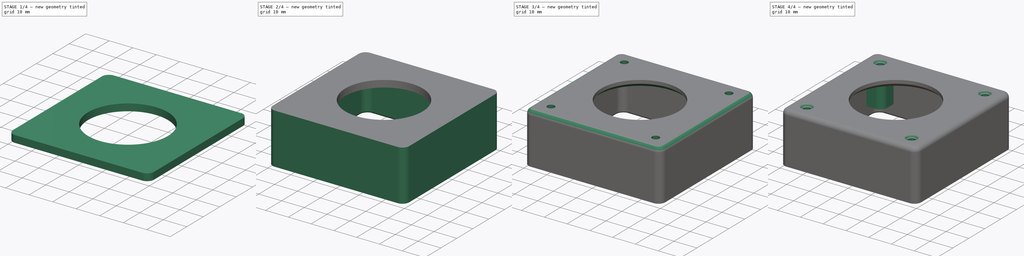
[diagram: build sequence overview — one tinted view per stage of 4, left to right]
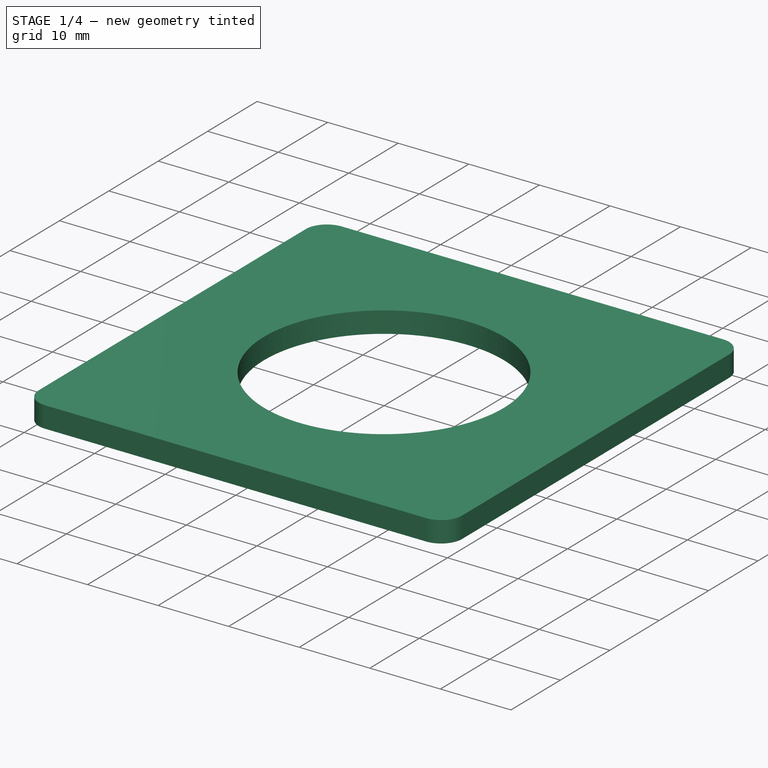
[diagram: stage 1 of 4 — iso view after this stage's code; geometry added in this stage tinted green]
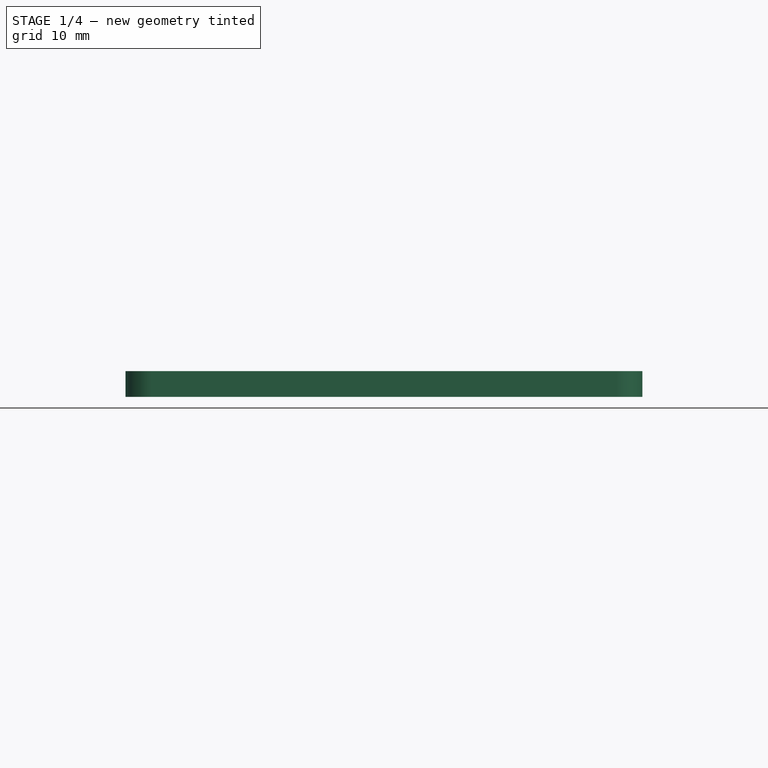
[diagram: stage 1 of 4 — front view after this stage's code; geometry added in this stage tinted green]
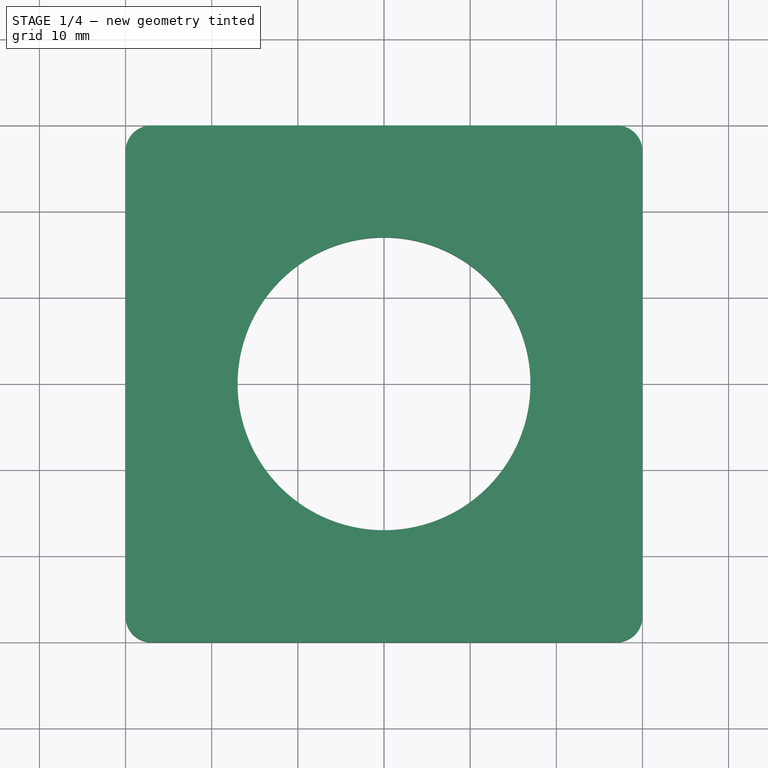
[diagram: stage 1 of 4 — top view after this stage's code; geometry added in this stage tinted green]
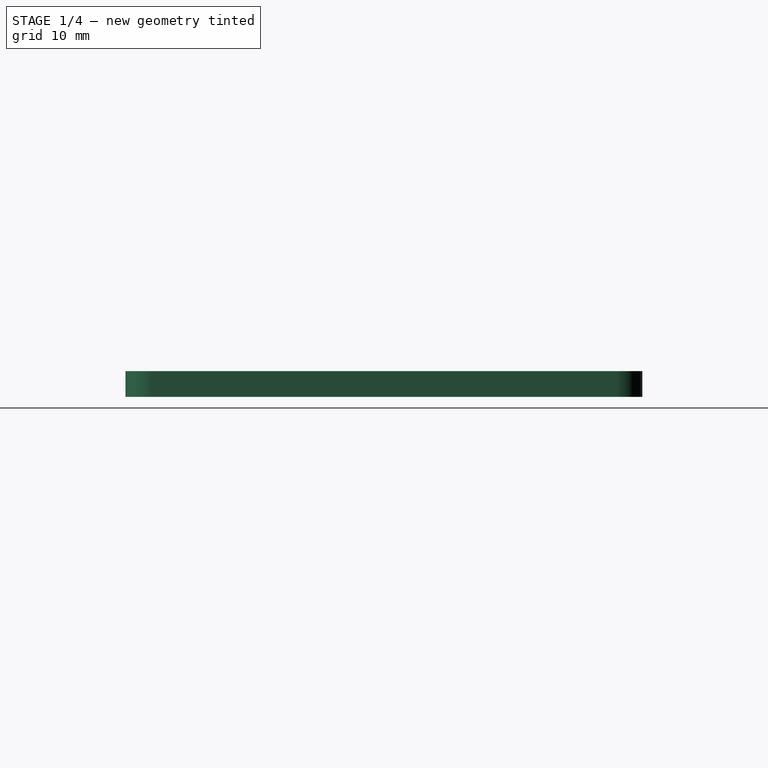
[diagram: stage 1 of 4 — right view after this stage's code; geometry added in this stage tinted green]
FCSTD DOCUMENT  (FreeCAD 1.0R39109 (Git))
Label: base lid
License: All rights reserved
objects: Sketcher::SketchObject×5, PartDesign::Pad×3, PartDesign::Pocket×2, PartDesign::Fillet×2, PartDesign::Chamfer×2, PartDesign::Body×1
note: 38 computed .brp shape members not serialized (recipe doc carries the construction recipe); baked Part::Feature solids carry a one-line shape summary decoded from their .brp

FEATURE [Sketcher::SketchObject] Sketch
  ArcFitTolerance = 1e-06
  AttachmentSupport = -> [XY_Plane]
  FullyConstrained = true
  MakeInternals = false
  MapMode = 5
  sketch-geometry (10):
    g0: LineSegment StartX=-30 StartY=27 StartZ=0 EndX=-30 EndY=-27 EndZ=0
    g1: LineSegment StartX=-27 StartY=-30 StartZ=0 EndX=27 EndY=-30 EndZ=0
    g2: LineSegment StartX=30 StartY=-27 StartZ=0 EndX=30 EndY=27 EndZ=0
    g3: LineSegment StartX=27 StartY=30 StartZ=0 EndX=-27 EndY=30 EndZ=0
    g4: ArcOfCircle CenterX=-27 CenterY=27 CenterZ=0 NormalX=0 NormalY=0 NormalZ=1 AngleXU=0 Radius=3 StartAngle=1.5708 EndAngle=3.14159
    g5: ArcOfCircle CenterX=-27 CenterY=-27 CenterZ=0 NormalX=0 NormalY=0 NormalZ=1 AngleXU=0 Radius=3 StartAngle=3.14159 EndAngle=4.71239
    g6: ArcOfCircle CenterX=27 CenterY=-27 CenterZ=0 NormalX=0 NormalY=0 NormalZ=1 AngleXU=0 Radius=3 StartAngle=4.71239 EndAngle=6.28319
    g7: ArcOfCircle CenterX=27 CenterY=27 CenterZ=0 NormalX=0 NormalY=0 NormalZ=1 AngleXU=0 Radius=3 StartAngle=3e-16 EndAngle=1.5708
    g8: GeomPoint [constr] X=-30 Y=30 Z=0
    g9: GeomPoint [constr] X=30 Y=-30 Z=0
  constraints (22):
    c: Tangent(g0,g4) = -1.5708
    c: Tangent(g0,g5) = -1.5708
    c: Tangent(g1,g5) = -1.5708
    c: Tangent(g1,g6) = -1.5708
    c: Tangent(g2,g6) = -1.5708
    c: Tangent(g2,g7) = -1.5708
    c: Tangent(g3,g7) = -1.5708
    c: Tangent(g3,g4) = -1.5708
    c: Vertical(g0)
    c: Vertical(g2)
    c: Horizontal(g1)
    c: Horizontal(g3)
    c: Equal(g5,g6)
    c: PointOnObject(g8,g0)
    c: PointOnObject(g8,g3)
    c: PointOnObject(g9,g1)
    c: PointOnObject(g9,g2)
    c: Distance(g0,g2) = 60
    c: Distance(g1,g3) = 60
    c: Radius(g5) = 3
    c: Symmetric(g4,g7,g-2)
    c: Symmetric(g5,g4,g-1)
FEATURE [PartDesign::Pad] Pad
  Direction = (0,0,1)
  Length = 3
  Length2 = 10
  Profile = -> Sketch
  ReferenceAxis = -> Sketch [N_Axis]
  Refine = true
  Suppressed = false
  Type = 0
FEATURE [Sketcher::SketchObject] Sketch001
  ArcFitTolerance = 1e-06
  AttachmentSupport = -> [Pad]
  FullyConstrained = true
  MakeInternals = false
  MapMode = 5
  Placement = pos=(0,0,0) rot=(1,0,0;3.14159rad)
  sketch-geometry (1):
    g0: Circle CenterX=0 CenterY=0 CenterZ=0 NormalX=0 NormalY=0 NormalZ=1 AngleXU=0 Radius=17
  constraints (2):
    c: Coincident(g0,g-1)
    c: Radius(g0) = 17
FEATURE [PartDesign::Pocket] Pocket
  BaseFeature = -> Pad
  Direction = (0,0,1)
  Length = 5
  Length2 = 5
  Profile = -> Sketch001
  ReferenceAxis = -> Sketch001 [N_Axis]
  Refine = true
  Suppressed = false
  Type = 1
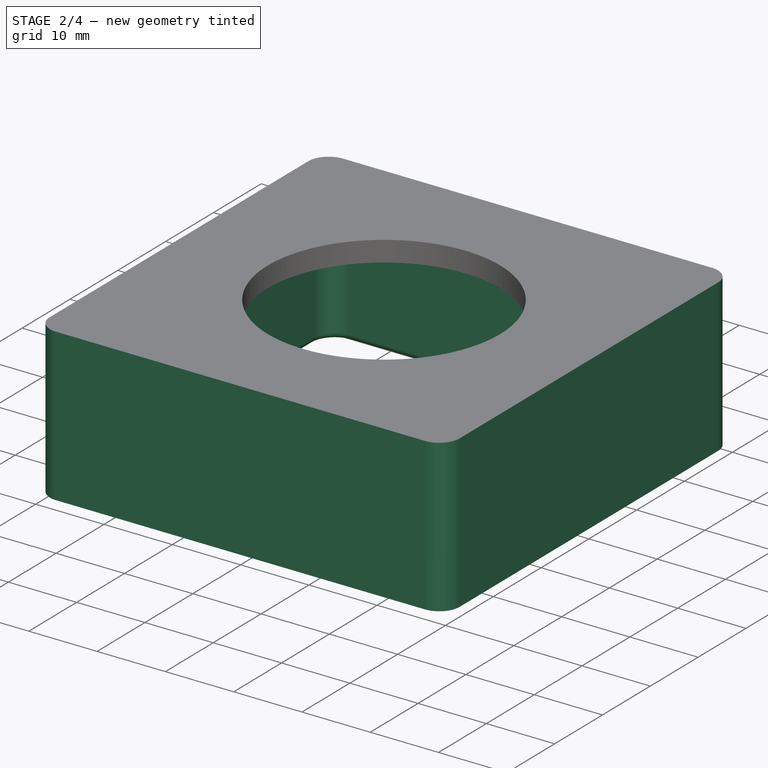
[diagram: stage 2 of 4 — iso view after this stage's code; geometry added in this stage tinted green]
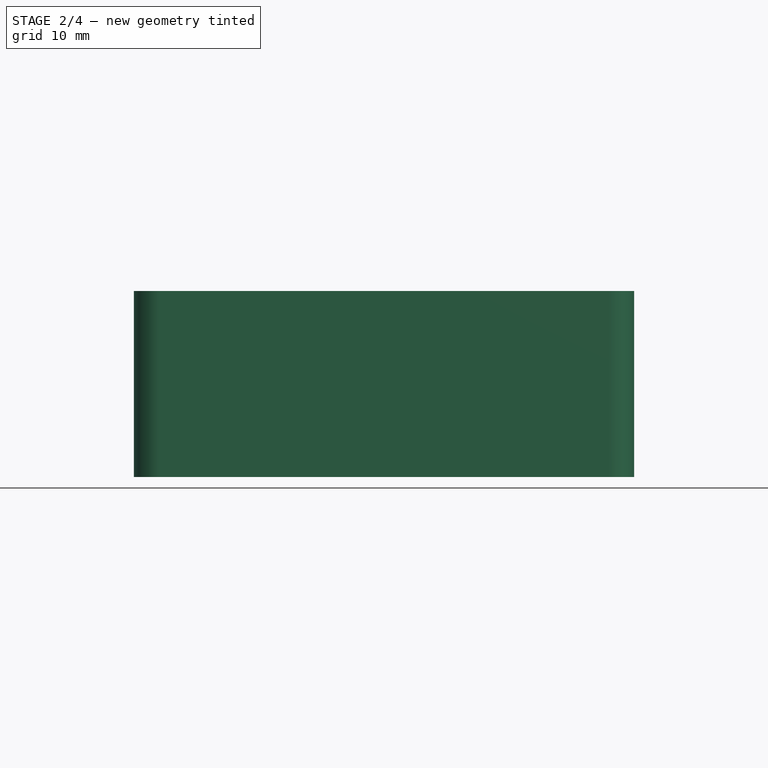
[diagram: stage 2 of 4 — front view after this stage's code; geometry added in this stage tinted green]
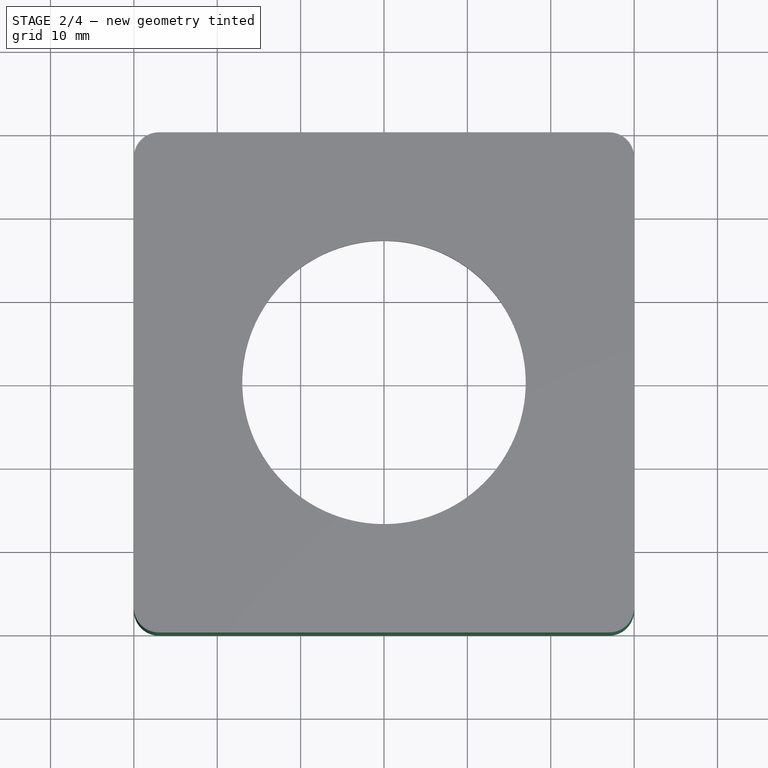
[diagram: stage 2 of 4 — top view after this stage's code; geometry added in this stage tinted green]
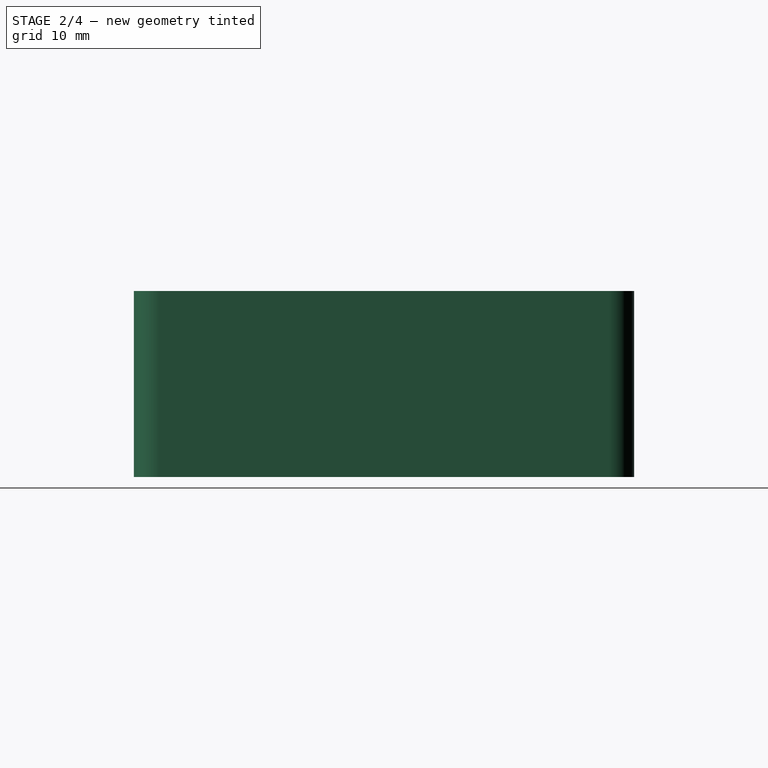
[diagram: stage 2 of 4 — right view after this stage's code; geometry added in this stage tinted green]
FEATURE [Sketcher::SketchObject] Sketch002
  ArcFitTolerance = 1e-06
  AttachmentSupport = -> [Pocket]
  ExternalGeometry = -> [Pocket]
  FullyConstrained = true
  MakeInternals = false
  MapMode = 5
  Placement = pos=(0,0,0) rot=(1,0,0;3.14159rad)
  sketch-geometry (20):
    g0: LineSegment StartX=-30 StartY=27 StartZ=0 EndX=-30 EndY=-27 EndZ=0
    g1: LineSegment StartX=-27 StartY=-30 StartZ=0 EndX=27 EndY=-30 EndZ=0
    g2: LineSegment StartX=30 StartY=-27 StartZ=0 EndX=30 EndY=27 EndZ=0
    g3: LineSegment StartX=27 StartY=30 StartZ=0 EndX=-27 EndY=30 EndZ=0
    g4: ArcOfCircle CenterX=-27 CenterY=27 CenterZ=0 NormalX=0 NormalY=0 NormalZ=1 AngleXU=0 Radius=3 StartAngle=1.5708 EndAngle=3.14159
    g5: ArcOfCircle CenterX=-27 CenterY=-27 CenterZ=0 NormalX=0 NormalY=0 NormalZ=1 AngleXU=0 Radius=3 StartAngle=3.14159 EndAngle=4.71239
    g6: ArcOfCircle CenterX=27 CenterY=-27 CenterZ=0 NormalX=0 NormalY=0 NormalZ=1 AngleXU=0 Radius=3 StartAngle=4.71239 EndAngle=6.28319
    g7: ArcOfCircle CenterX=27 CenterY=27 CenterZ=0 NormalX=0 NormalY=0 NormalZ=1 AngleXU=0 Radius=3 StartAngle=1e-16 EndAngle=1.5708
    g8: GeomPoint [constr] X=-30 Y=30 Z=0
    g9: GeomPoint [constr] X=30 Y=-30 Z=0
    g10: LineSegment StartX=-27 StartY=24 StartZ=0 EndX=-27 EndY=-24 EndZ=0
    g11: LineSegment StartX=-24 StartY=-27 StartZ=0 EndX=24 EndY=-27 EndZ=0
    g12: LineSegment StartX=27 StartY=-24 StartZ=0 EndX=27 EndY=24 EndZ=0
    g13: LineSegment StartX=24 StartY=27 StartZ=0 EndX=-24 EndY=27 EndZ=0
    g14: ArcOfCircle CenterX=-24 CenterY=24 CenterZ=0 NormalX=0 NormalY=0 NormalZ=1 AngleXU=0 Radius=3 StartAngle=1.5708 EndAngle=3.14159
    g15: ArcOfCircle CenterX=-24 CenterY=-24 CenterZ=0 NormalX=0 NormalY=0 NormalZ=1 AngleXU=0 Radius=3 StartAngle=3.14159 EndAngle=4.71239
    g16: ArcOfCircle CenterX=24 CenterY=-24 CenterZ=0 NormalX=0 NormalY=0 NormalZ=1 AngleXU=0 Radius=3 StartAngle=4.71239 EndAngle=6.28319
    g17: ArcOfCircle CenterX=24 CenterY=24 CenterZ=0 NormalX=0 NormalY=0 NormalZ=1 AngleXU=0 Radius=3 StartAngle=4e-16 EndAngle=1.5708
    g18: GeomPoint [constr] X=-27 Y=27 Z=0
    g19: GeomPoint [constr] X=27 Y=-27 Z=0
  constraints (45):
    c: Tangent(g0,g4) = -1.5708
    c: Tangent(g0,g5) = -1.5708
    c: Tangent(g1,g5) = -1.5708
    c: Tangent(g1,g6) = -1.5708
    c: Tangent(g2,g6) = -1.5708
    c: Tangent(g2,g7) = -1.5708
    c: Tangent(g3,g7) = -1.5708
    c: Tangent(g3,g4) = -1.5708
    c: Vertical(g0)
    c: Vertical(g2)
    c: Horizontal(g1)
    c: Horizontal(g3)
    c: Equal(g4,g5)
    c: Equal(g5,g6)
    c: Equal(g6,g7)
    c: PointOnObject(g8,g0)
    c: PointOnObject(g8,g3)
    c: PointOnObject(g9,g1)
    c: PointOnObject(g9,g2)
    c: Radius(g5) = 3
    c: Tangent(g10,g14) = -1.5708
    c: Tangent(g10,g15) = -1.5708
    c: Tangent(g11,g15) = -1.5708
    c: Tangent(g11,g16) = -1.5708
    c: Tangent(g12,g16) = -1.5708
    c: Tangent(g12,g17) = -1.5708
    c: Tangent(g13,g17) = -1.5708
    c: Tangent(g13,g14) = -1.5708
    c: Vertical(g10)
    c: Vertical(g12)
    c: Horizontal(g11)
    c: Horizontal(g13)
    c: Equal(g15,g16)
    c: PointOnObject(g18,g10)
    c: PointOnObject(g18,g13)
    c: PointOnObject(g19,g11)
    c: PointOnObject(g19,g12)
    c: Radius(g15) = 3
    c: Coincident(g-3,g4)
    c: Coincident(g-4,g6)
    c: Symmetric(g10,g12,g-2)
    c: Symmetric(g13,g11,g-1)
    c: DistanceX(g0,g10) = 3
    c: Equal(g10,g13)
    c: DistanceX(g10,g12) = 54
FEATURE [PartDesign::Pad] Pad001
  BaseFeature = -> Pocket
  Direction = (0,0,-1)
  Length = 19.3
  Length2 = 10
  Profile = -> Sketch002
  ReferenceAxis = -> Sketch002 [N_Axis]
  Refine = true
  Suppressed = false
  Type = 0
FEATURE [PartDesign::Fillet] Fillet
  Base = -> Pad001 [Edge9,Edge13,Edge15,Edge11]
  BaseFeature = -> Pad001
  Radius = 1
  Refine = true
  SupportTransform = false
  Suppressed = false
  UseAllEdges = false
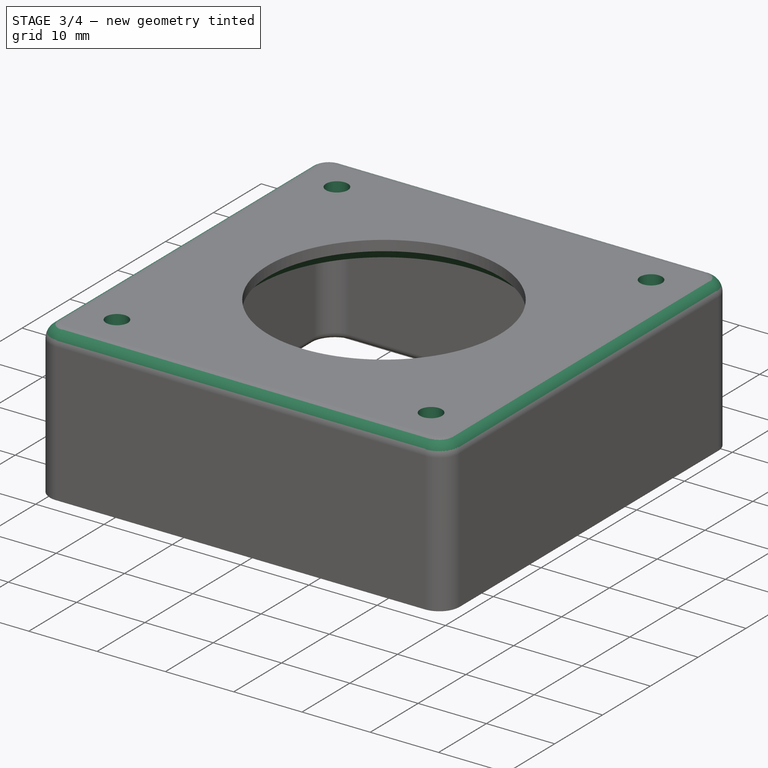
[diagram: stage 3 of 4 — iso view after this stage's code; geometry added in this stage tinted green]
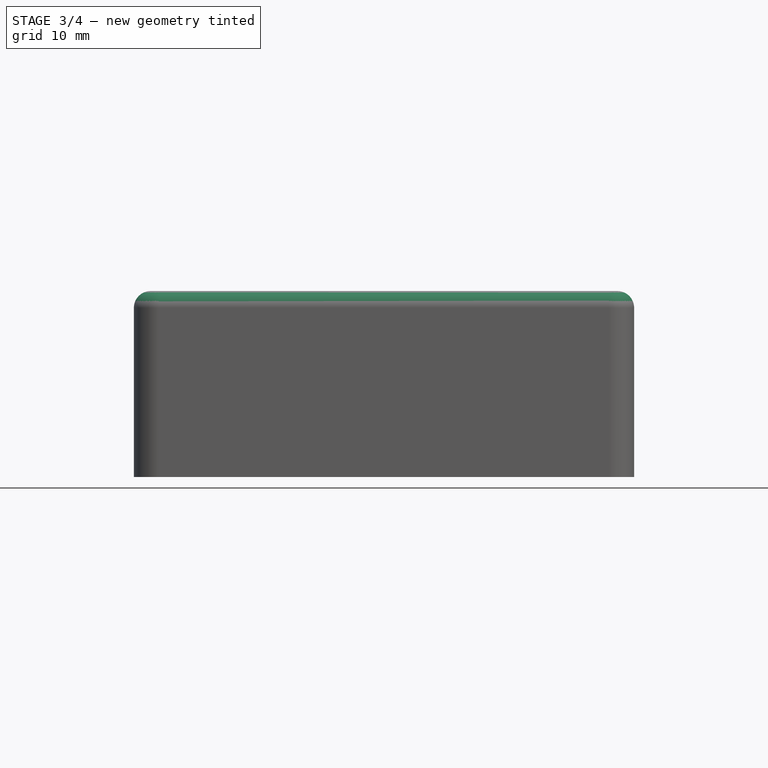
[diagram: stage 3 of 4 — front view after this stage's code; geometry added in this stage tinted green]
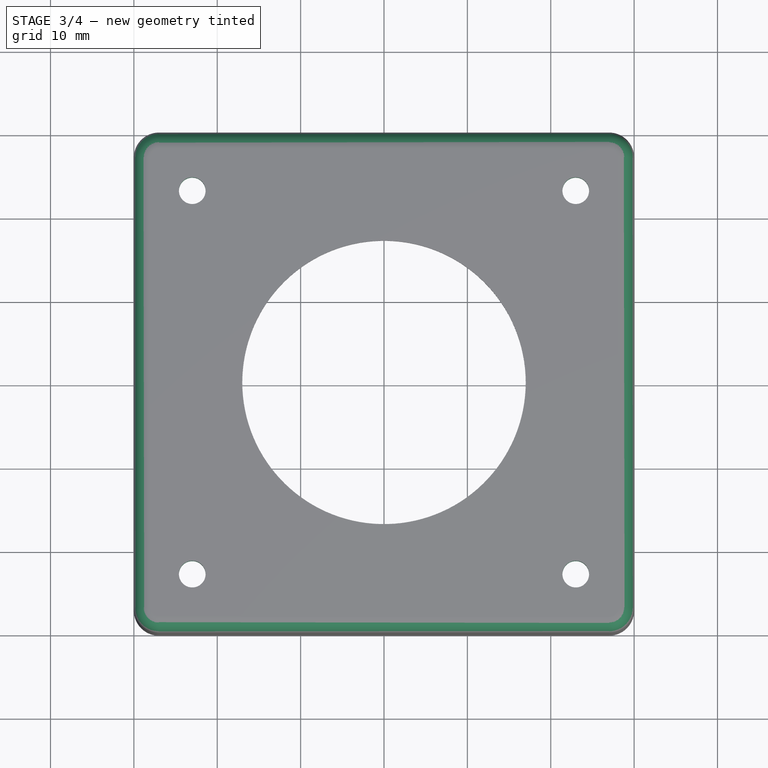
[diagram: stage 3 of 4 — top view after this stage's code; geometry added in this stage tinted green]
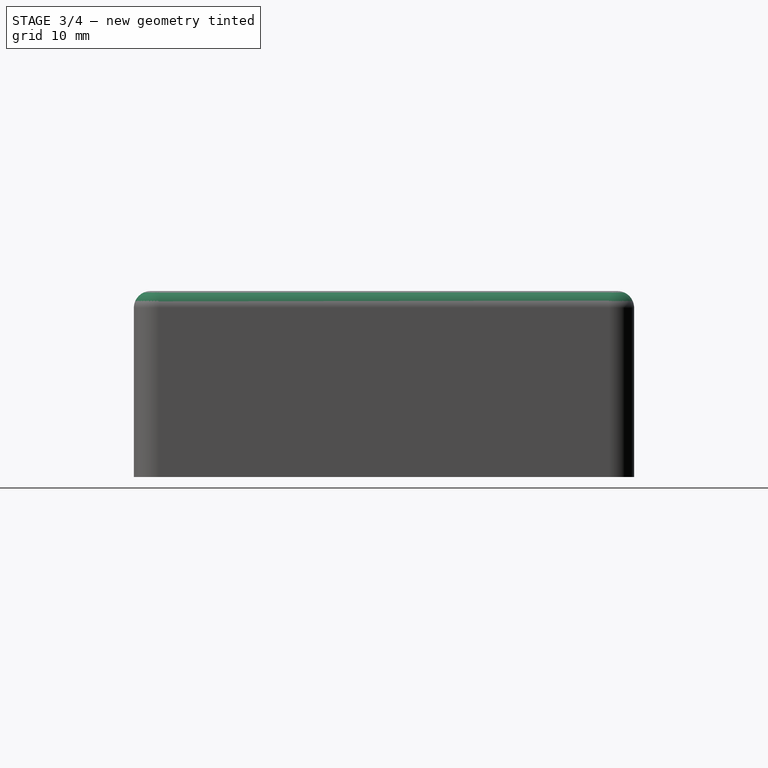
[diagram: stage 3 of 4 — right view after this stage's code; geometry added in this stage tinted green]
FEATURE [PartDesign::Fillet] Fillet001
  Base = -> Fillet [Edge39,Edge35,Edge47,Edge43]
  BaseFeature = -> Fillet
  Radius = 2
  Refine = true
  SupportTransform = false
  Suppressed = false
  UseAllEdges = false
FEATURE [PartDesign::Chamfer] Chamfer
  Angle = 45
  Base = -> Fillet001 [Edge66]
  BaseFeature = -> Fillet001
  ChamferType = 0
  FlipDirection = false
  Refine = true
  Size = 1.5
  Size2 = 1
  SupportTransform = false
  Suppressed = false
  UseAllEdges = false
FEATURE [Sketcher::SketchObject] Sketch003
  ArcFitTolerance = 1e-06
  AttachmentSupport = -> [Chamfer]
  FullyConstrained = true
  MakeInternals = false
  MapMode = 5
  Placement = pos=(0,0,0) rot=(1,0,0;3.14159rad)
  sketch-geometry (8):
    g0: LineSegment [constr] StartX=-23 StartY=23 StartZ=0 EndX=-23 EndY=-23 EndZ=0
    g1: LineSegment [constr] StartX=-23 StartY=-23 StartZ=0 EndX=23 EndY=-23 EndZ=0
    g2: LineSegment [constr] StartX=23 StartY=-23 StartZ=0 EndX=23 EndY=23 EndZ=0
    g3: LineSegment [constr] StartX=23 StartY=23 StartZ=0 EndX=-23 EndY=23 EndZ=0
    g4: Circle CenterX=-23 CenterY=23 CenterZ=0 NormalX=0 NormalY=0 NormalZ=1 AngleXU=0 Radius=1.6
    g5: Circle CenterX=-23 CenterY=-23 CenterZ=0 NormalX=0 NormalY=0 NormalZ=1 AngleXU=0 Radius=1.6
    g6: Circle CenterX=23 CenterY=-23 CenterZ=0 NormalX=0 NormalY=0 NormalZ=1 AngleXU=0 Radius=1.6
    g7: Circle CenterX=23 CenterY=23 CenterZ=0 NormalX=0 NormalY=0 NormalZ=1 AngleXU=0 Radius=1.6
  constraints (18):
    c: Coincident(g0,g1)
    c: Coincident(g1,g2)
    c: Coincident(g2,g3)
    c: Coincident(g3,g0)
    c: Vertical(g2)
    c: Horizontal(g3)
    c: Symmetric(g0,g1,g-2)
    c: Symmetric(g0,g0,g-1)
    c: Equal(g0,g1)
    c: DistanceX(g3,g3) = 46
    c: Coincident(g4,g0)
    c: Coincident(g5,g0)
    c: Coincident(g6,g1)
    c: Coincident(g7,g2)
    c: Equal(g7,g4)
    c: Equal(g4,g5)
    c: Equal(g5,g6)
    c: Radius(g5) = 1.6
FEATURE [PartDesign::Pocket] Pocket001
  BaseFeature = -> Chamfer
  Direction = (0,0,1)
  Length = 5
  Length2 = 5
  Profile = -> Sketch003
  ReferenceAxis = -> Sketch003 [N_Axis]
  Refine = true
  Suppressed = false
  Type = 0
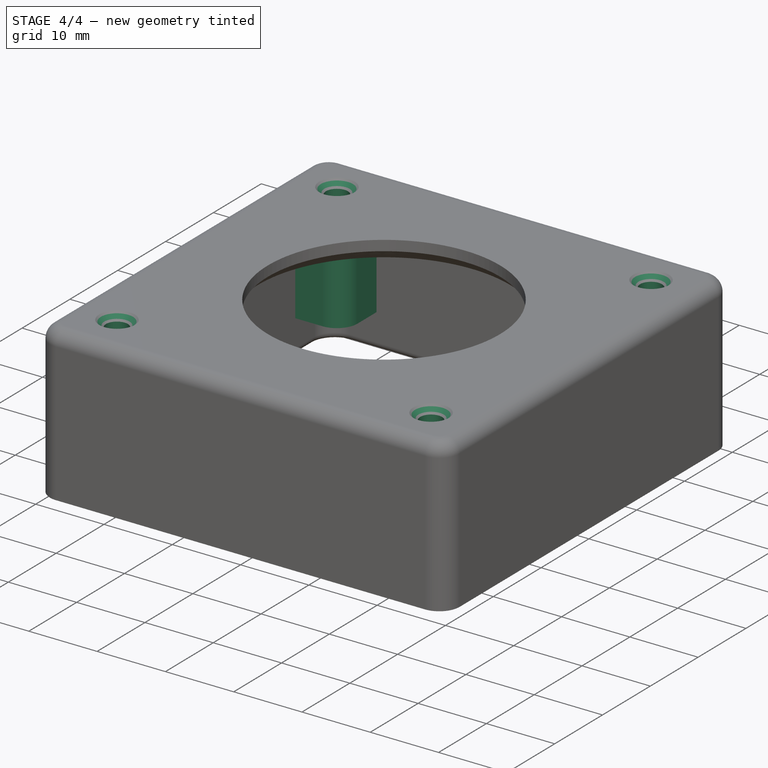
[diagram: stage 4 of 4 — iso view after this stage's code; geometry added in this stage tinted green]
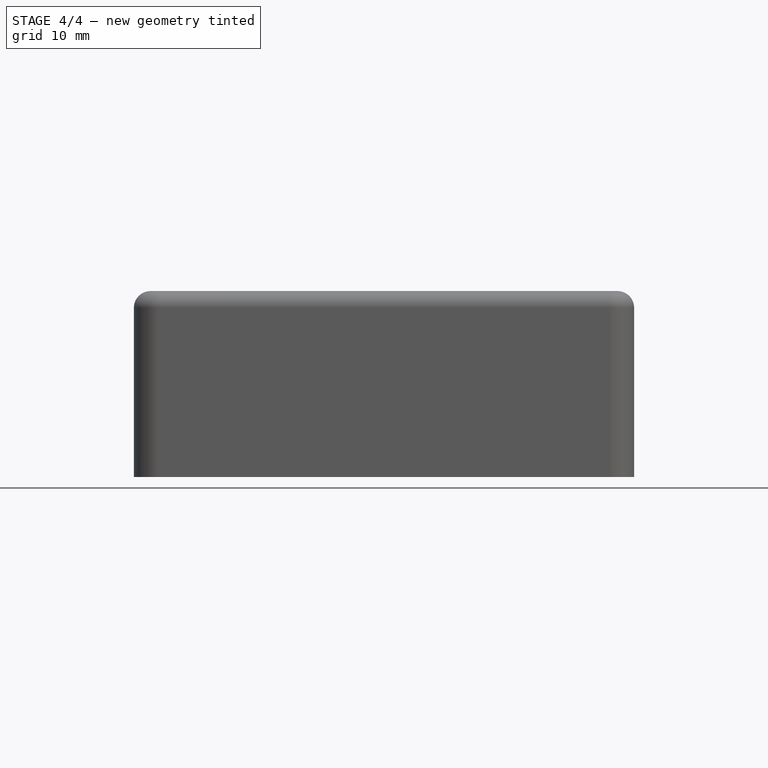
[diagram: stage 4 of 4 — front view after this stage's code; geometry added in this stage tinted green]
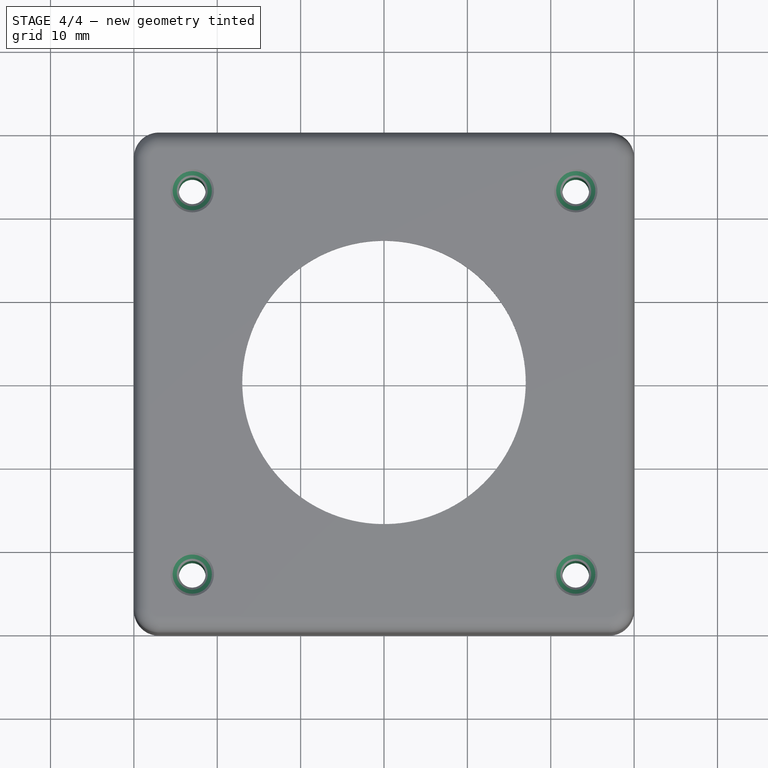
[diagram: stage 4 of 4 — top view after this stage's code; geometry added in this stage tinted green]
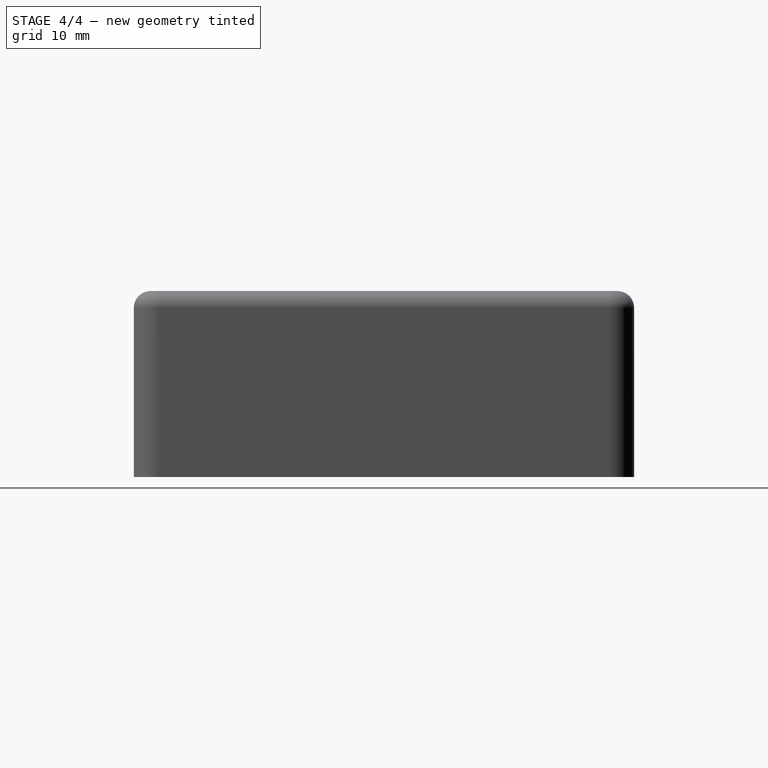
[diagram: stage 4 of 4 — right view after this stage's code; geometry added in this stage tinted green]
FEATURE [Sketcher::SketchObject] Sketch004
  ArcFitTolerance = 1e-06
  AttachmentSupport = -> [Pocket001]
  ExternalGeometry = -> [Pocket001]
  FullyConstrained = true
  MakeInternals = false
  MapMode = 5
  Placement = pos=(0,0,0) rot=(1,0,0;3.14159rad)
  sketch-geometry (31):
    g0: LineSegment StartX=-27 StartY=24 StartZ=0 EndX=-27 EndY=20 EndZ=0
    g1: LineSegment StartX=-27 StartY=20 StartZ=0 EndX=-23 EndY=20 EndZ=0
    g2: LineSegment StartX=-20 StartY=23 StartZ=0 EndX=-20 EndY=27 EndZ=0
    g3: LineSegment StartX=-20 StartY=27 StartZ=0 EndX=-24 EndY=27 EndZ=0
    g4: ArcOfCircle CenterX=-24 CenterY=24 CenterZ=0 NormalX=0 NormalY=0 NormalZ=1 AngleXU=0 Radius=3 StartAngle=1.5708 EndAngle=3.14159
    g5: ArcOfCircle CenterX=-23 CenterY=23 CenterZ=0 NormalX=0 NormalY=0 NormalZ=1 AngleXU=0 Radius=3 StartAngle=4.71239 EndAngle=6.28319
    g6: GeomPoint [constr] X=-27 Y=27 Z=0
    g7: LineSegment StartX=23 StartY=20 StartZ=0 EndX=27 EndY=20 EndZ=0
    g8: LineSegment StartX=27 StartY=20 StartZ=0 EndX=27 EndY=24 EndZ=0
    g9: LineSegment StartX=24 StartY=27 StartZ=0 EndX=20 EndY=27 EndZ=0
    g10: LineSegment StartX=20 StartY=27 StartZ=0 EndX=20 EndY=23 EndZ=0
    g11: ArcOfCircle CenterX=23 CenterY=23 CenterZ=0 NormalX=0 NormalY=0 NormalZ=1 AngleXU=0 Radius=3 StartAngle=3.14159 EndAngle=4.71239
    g12: ArcOfCircle CenterX=24 CenterY=24 CenterZ=0 NormalX=0 NormalY=0 NormalZ=1 AngleXU=0 Radius=3 StartAngle=2e-16 EndAngle=1.5708
    g13: GeomPoint [constr] X=27 Y=27 Z=0
    g14: LineSegment StartX=-23 StartY=-20 StartZ=0 EndX=-27 EndY=-20 EndZ=0
    g15: LineSegment StartX=-27 StartY=-20 StartZ=0 EndX=-27 EndY=-24 EndZ=0
    g16: LineSegment StartX=-24 StartY=-27 StartZ=0 EndX=-20 EndY=-27 EndZ=0
    g17: LineSegment StartX=-20 StartY=-27 StartZ=0 EndX=-20 EndY=-23 EndZ=0
    g18: ArcOfCircle CenterX=-23 CenterY=-23 CenterZ=0 NormalX=0 NormalY=0 NormalZ=1 AngleXU=0 Radius=3 StartAngle=0 EndAngle=1.5708
    g19: ArcOfCircle CenterX=-24 CenterY=-24 CenterZ=0 NormalX=0 NormalY=0 NormalZ=1 AngleXU=0 Radius=3 StartAngle=3.14159 EndAngle=4.71239
    g20: GeomPoint [constr] X=-27 Y=-27 Z=0
    g21: LineSegment StartX=27 StartY=-20 StartZ=0 EndX=23 EndY=-20 EndZ=0
    g22: LineSegment StartX=20 StartY=-23 StartZ=0 EndX=20 EndY=-27 EndZ=0
    g23: LineSegment StartX=20 StartY=-27 StartZ=0 EndX=24 EndY=-27 EndZ=0
    g24: LineSegment StartX=27 StartY=-24 StartZ=0 EndX=27 EndY=-20 EndZ=0
    g25: ArcOfCircle CenterX=23 CenterY=-23 CenterZ=0 NormalX=0 NormalY=0 NormalZ=1 AngleXU=0 Radius=3 StartAngle=1.5708 EndAngle=3.14159
    g26: ArcOfCircle CenterX=24 CenterY=-24 CenterZ=0 NormalX=0 NormalY=0 NormalZ=1 AngleXU=0 Radius=3 StartAngle=4.71239 EndAngle=6.28319
    g27: Circle CenterX=-23 CenterY=23 CenterZ=0 NormalX=0 NormalY=0 NormalZ=1 AngleXU=0 Radius=1.6
    g28: Circle CenterX=23 CenterY=23 CenterZ=0 NormalX=0 NormalY=0 NormalZ=1 AngleXU=0 Radius=1.6
    g29: Circle CenterX=-23 CenterY=-23 CenterZ=0 NormalX=0 NormalY=0 NormalZ=1 AngleXU=0 Radius=1.6
    g30: Circle CenterX=23 CenterY=-23 CenterZ=0 NormalX=0 NormalY=0 NormalZ=1 AngleXU=0 Radius=1.6
  constraints (67):
    c: Tangent(g0,g4) = -1.5708
    c: Tangent(g1,g5) = -1.5708
    c: Tangent(g2,g5) = -1.5708
    c: Vertical(g0)
    c: Vertical(g2)
    c: Horizontal(g1)
    c: Horizontal(g3)
    c: PointOnObject(g6,g0)
    c: PointOnObject(g6,g3)
    c: Tangent(g7,g11) = -1.5708
    c: Tangent(g8,g12) = -1.5708
    c: Tangent(g9,g12) = -1.5708
    c: Tangent(g10,g11) = -1.5708
    c: Horizontal(g7)
    c: Horizontal(g9)
    c: Vertical(g10)
    c: PointOnObject(g13,g8)
    c: PointOnObject(g13,g9)
    c: Tangent(g14,g18) = -1.5708
    c: Tangent(g15,g19) = -1.5708
    c: Tangent(g16,g19) = -1.5708
    c: Tangent(g17,g18) = -1.5708
    c: Horizontal(g14)
    c: Horizontal(g16)
    c: Vertical(g17)
    c: PointOnObject(g20,g15)
    c: PointOnObject(g20,g16)
    c: Tangent(g21,g25) = -1.5708
    c: Tangent(g22,g25) = -1.5708
    c: Tangent(g23,g26) = -1.5708
    c: Tangent(g24,g26) = -1.5708
    c: Horizontal(g21)
    c: Horizontal(g23)
    c: Vertical(g22)
    c: Coincident(g-10,g24)
    c: Coincident(g23,g-10)
    c: Coincident(g22,g23)
    c: Coincident(g24,g21)
    c: Coincident(g25,g-6)
    c: Equal(g25,g26)
    c: Coincident(g8,g-9)
    c: Coincident(g-9,g9)
    c: Coincident(g8,g7)
    c: Coincident(g9,g10)
    c: Coincident(g11,g-4)
    c: Equal(g9,g24)
    c: Coincident(g16,g17)
    c: Coincident(g14,g15)
    c: Coincident(g16,g-7)
    c: Coincident(g15,g-7)
    c: Coincident(g-5,g18)
    c: Equal(g16,g23)
    c: Coincident(g2,g3)
    c: Coincident(g0,g1)
    c: Coincident(g0,g-8)
    c: Coincident(g3,g4)
    c: Coincident(g3,g-8)
    c: Coincident(g5,g-3)
    c: Equal(g0,g15)
    c: Coincident(g27,g5)
    c: Coincident(g28,g11)
    c: Coincident(g29,g18)
    c: Coincident(g30,g25)
    c: Equal(g30,g29)
    c: Equal(g29,g27)
    c: Equal(g27,g28)
    c: Equal(g29,g-5)
FEATURE [PartDesign::Pad] Pad002
  BaseFeature = -> Pocket001
  Direction = (0,0,-1)
  Length = 14.3
  Length2 = 10
  Profile = -> Sketch004
  ReferenceAxis = -> Sketch004 [N_Axis]
  Refine = true
  Suppressed = false
  Type = 0
FEATURE [PartDesign::Chamfer] Chamfer001
  Angle = 45
  Base = -> Pad002 [Edge14,Edge15,Edge16,Edge17]
  BaseFeature = -> Pad002
  ChamferType = 0
  FlipDirection = false
  Refine = true
  Size = 1
  Size2 = 1
  SupportTransform = false
  Suppressed = false
  UseAllEdges = false
FEATURE [PartDesign::Body] Body
  AllowCompound = false
  Group = -> [Sketch,Pad,Sketch001,Pocket,Sketch002,Pad001,Fillet,Fillet001,Chamfer,Sketch003,Pocket001,Sketch004,Pad002,Chamfer001]
  Origin = -> Origin
  Tip = -> Chamfer001
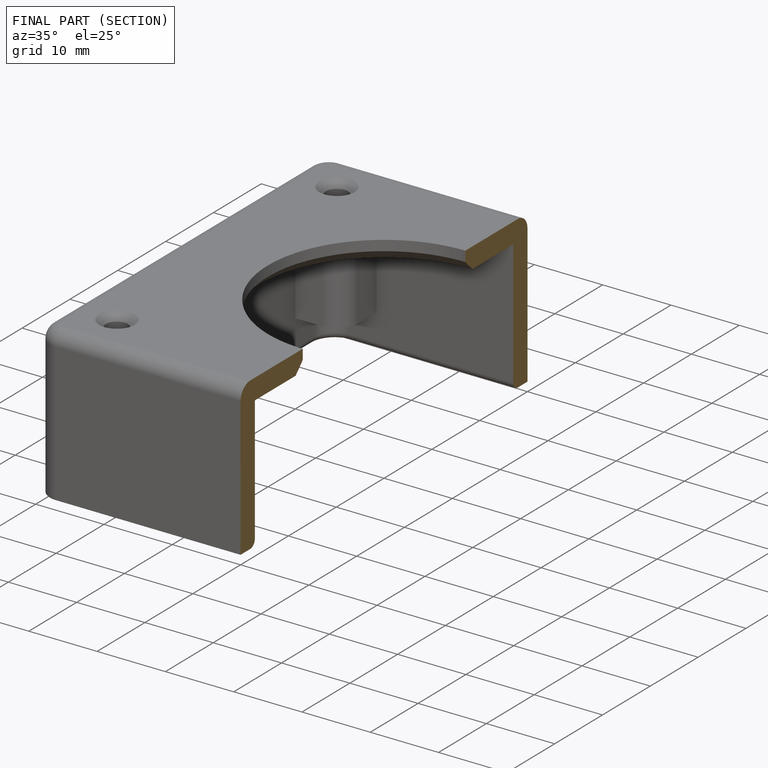
[diagram: finished part — half-section view (interior)]
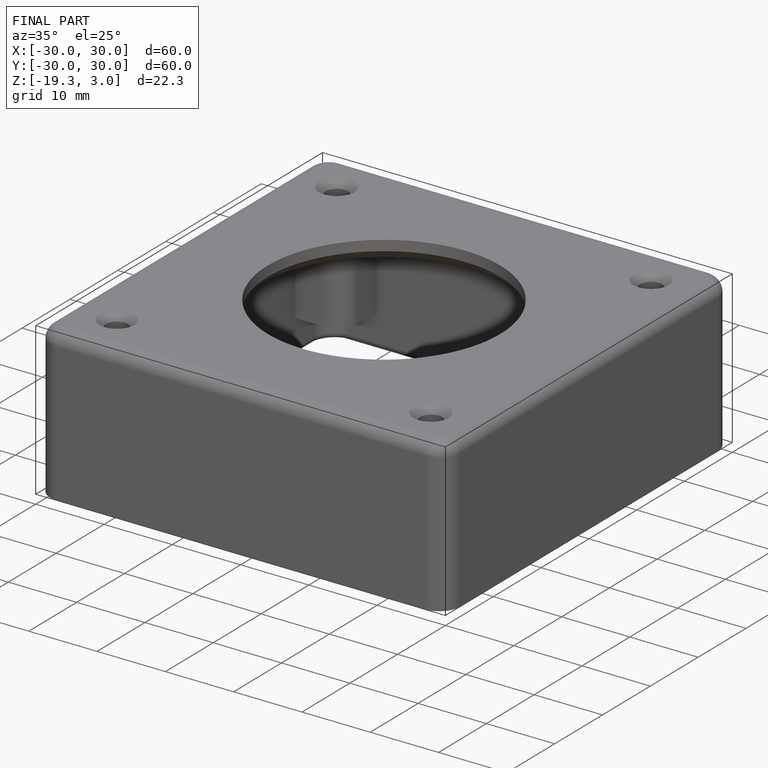
[diagram: finished part — iso view with bounding-box wireframe]
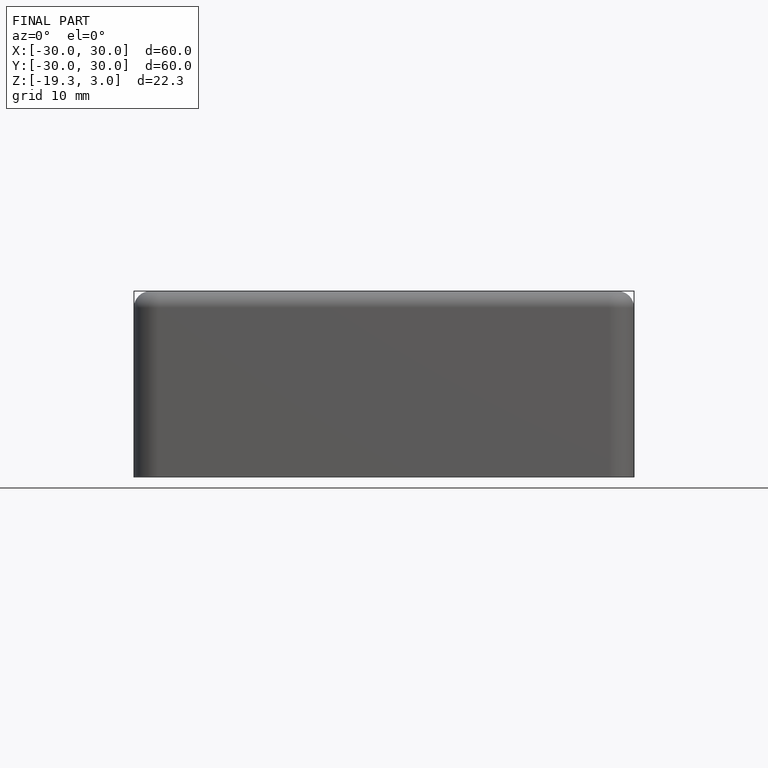
[diagram: finished part — front view with bounding-box wireframe]
